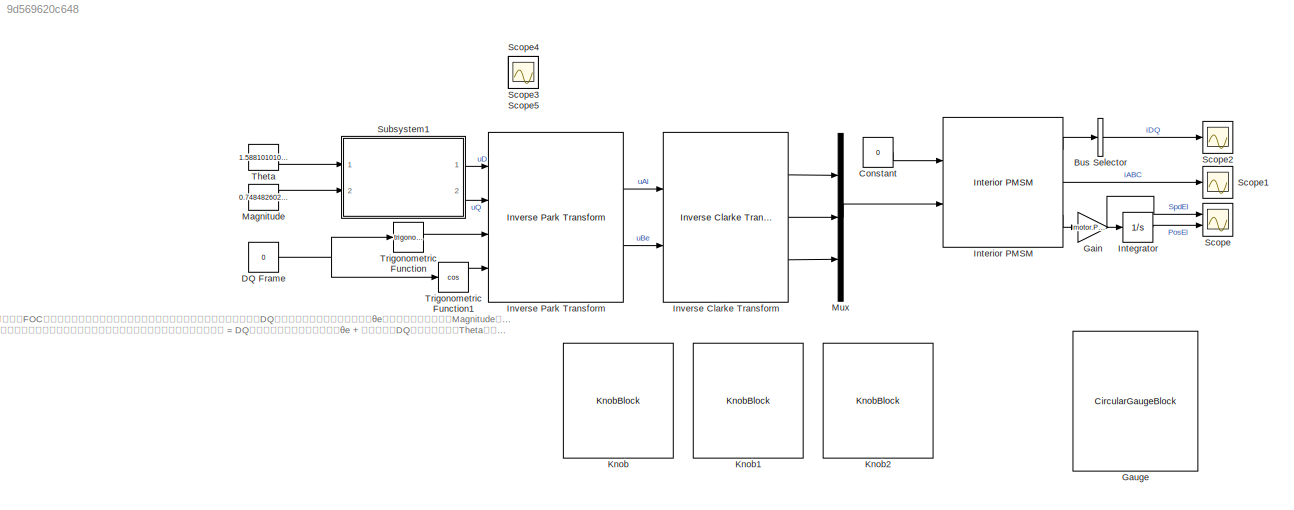
MODEL slx_9d569620c648
KIND model
CONFIG AbsTol = auto
CONFIG EnableMultiTasking = off
CONFIG FixedStep = Ts
CONFIG InitFcn = FOC_basic;
CONFIG MaxStep = 0.0005
CONFIG MinStep = auto
CONFIG RelTol = 1e-3
CONFIG SampleTimeConstraint = Unconstrained
CONFIG SolverName = FixedStepAuto
CONFIG StartTime = 0.0
CONFIG StopTime = inf
BLOCK [BusSelector] Bus Selector
  OutputAsBus = on
  OutputSignals = IdSync,IqSync
  Ports = [1, 1]
BLOCK [Constant] Constant
  Value = 0
BLOCK [Constant] DQ Frame
  Value = 0
BLOCK [Gain] Gain
  Gain = motor.Prs
BLOCK [CircularGaugeBlock] Gauge
  ScaleMax = 3.14
  ScaleMin = -3.14
  TickInterval = 1.57
BLOCK [Integrator] Integrator
  Ports = [1, 1]
  WrapState = on
BLOCK [Reference] Interior PMSM  REF=autolibpmsminterior/Interior PMSM
  Ports = [2, 3]
  SourceBlock = autolibpmsminterior/Interior PMSM
  SourceProductBaseCode = PW,MT,UV,VE,VP
  SourceType = Interior PMSM
BLOCK [Reference] Inverse Clarke Transform  REF=mcbcontrolslib/Inverse Clarke Transform
  Ports = [2, 3]
  SourceBlock = mcbcontrolslib/Inverse Clarke Transform
  SourceProductBaseCode = MT
  SourceType = Inverse Clarke Transform
BLOCK [Reference] Inverse Park Transform  REF=mcbcontrolslib/Inverse Park Transform
  Ports = [4, 2]
  SourceBlock = mcbcontrolslib/Inverse Park Transform
  SourceProductBaseCode = MT
  SourceType = Inverse Park Transform
BLOCK [KnobBlock] Knob
  ScaleMax = 3.14
  ScaleMin = -3.14
  TickInterval = 1.57
BLOCK [KnobBlock] Knob1
  ScaleMax = 12
  ScaleMin = -12
BLOCK [KnobBlock] Knob2
  ScaleMax = 3.14
  ScaleMin = -3.14
  TickInterval = 1.57
BLOCK [Constant] Magnitude
  Value = 0.7484826020082345
BLOCK [Mux] Mux
  DisplayOption = bar
  Inputs = 3
  Ports = [3, 1]
BLOCK [Scope] Scope
  Floating = off
  NumInputPorts = 2
  Ports = [2]
  ScopeSpecificationString = Simulink.scopes.TimeScopeBlockCfg('CurrentConfiguration', extmgr.ConfigurationSet(extmgr.Configuration('Core','General UI',true),extmgr.Configuration('Core','Source UI',true),extmgr.Configuration('Sources','WiredSimulink',true),extmgr.Configuration('Visuals','Time Domain',true,'SerializedDisplays',{struct('MinYLimReal','-49.03254','MaxYLimReal','49.03255','YLabelReal','','MinYLimMag','0.00000','Ma...<+2041ch>
BLOCK [Scope] Scope1
  Floating = off
  NumInputPorts = 1
  Ports = [1]
  ScopeSpecificationString = Simulink.scopes.TimeScopeBlockCfg('CurrentConfiguration', extmgr.ConfigurationSet(extmgr.Configuration('Core','General UI',true),extmgr.Configuration('Core','Source UI',true),extmgr.Configuration('Sources','WiredSimulink',true,'DataLoggingVariableName','ScopeData1'),extmgr.Configuration('Visuals','Time Domain',true,'SerializedDisplays',{struct('MinYLimReal','-0.46338','MaxYLimReal','0.46557','YLab...<+1454ch>
BLOCK [Scope] Scope2
  Floating = off
  NumInputPorts = 1
  Ports = [1]
  ScopeSpecificationString = Simulink.scopes.TimeScopeBlockCfg('CurrentConfiguration', extmgr.ConfigurationSet(extmgr.Configuration('Core','General UI',true),extmgr.Configuration('Core','Source UI',true),extmgr.Configuration('Sources','WiredSimulink',true,'DataLoggingVariableName','ScopeData2'),extmgr.Configuration('Visuals','Time Domain',true,'SerializedDisplays',{struct('MinYLimReal','-14.72706','MaxYLimReal','13.4803','YLa...<+1428ch>
BLOCK [Scope] Scope3
  Floating = off
  IOType = viewer
  NumInputPorts = 1
  Ports = []
  ScopeSpecificationString = Simulink.scopes.TimeScopeBlockCfg('CurrentConfiguration', extmgr.ConfigurationSet(extmgr.Configuration('Core','General UI',true),extmgr.Configuration('Core','Source UI',true),extmgr.Configuration('Sources','WiredSimulink',true,'DataLoggingVariableName','ScopeData1'),extmgr.Configuration('Visuals','Time Domain',true,'SerializedDisplays',{struct('MinYLimReal','-0.9284','MaxYLimReal','0.92572','YLabe...<+1633ch>
BLOCK [Scope] Scope4
  Floating = off
  IOType = viewer
  NumInputPorts = 1
  Ports = []
  ScopeSpecificationString = Simulink.scopes.TimeScopeBlockCfg('CurrentConfiguration', extmgr.ConfigurationSet(extmgr.Configuration('Core','General UI',true),extmgr.Configuration('Core','Source UI',true),extmgr.Configuration('Sources','WiredSimulink',true,'DataLoggingVariableName','ScopeData2'),extmgr.Configuration('Visuals','Time Domain',true,'SerializedDisplays',{struct('MinYLimReal','-0.9284','MaxYLimReal','0.92572','YLabe...<+1378ch>
BLOCK [Scope] Scope5
  Floating = off
  IOType = viewer
  NumInputPorts = 1
  Ports = []
  ScopeSpecificationString = Simulink.scopes.TimeScopeBlockCfg('CurrentConfiguration', extmgr.ConfigurationSet(extmgr.Configuration('Core','General UI',true),extmgr.Configuration('Core','Source UI',true),extmgr.Configuration('Sources','WiredSimulink',true,'DataLoggingVariableName','ScopeData3'),extmgr.Configuration('Visuals','Time Domain',true,'SerializedDisplays',{struct('MinYLimReal','-0.92826','MaxYLimReal','0.92449','YLab...<+1468ch>
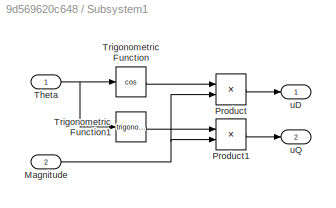
BLOCK [SubSystem] Subsystem1
  Ports = [2, 2]
  RequestExecContextInheritance = off
BLOCK [Inport] Subsystem1/Magnitude
  Port = 2
  SampleTime = Ts
BLOCK [Product] Subsystem1/Product
  Ports = [2, 1]
BLOCK [Product] Subsystem1/Product1
  Ports = [2, 1]
BLOCK [Inport] Subsystem1/Theta
  SampleTime = Ts
BLOCK [Trigonometry] Subsystem1/Trigonometric Function
  Operator = cos
  Ports = [1, 1]
BLOCK [Trigonometry] Subsystem1/Trigonometric Function1
  Ports = [1, 1]
BLOCK [Outport] Subsystem1/uD
BLOCK [Outport] Subsystem1/uQ
  Port = 2
BLOCK [Constant] Theta
  Value = 1.588101010628483
BLOCK [Trigonometry] Trigonometric Function
  Ports = [1, 1]
BLOCK [Trigonometry] Trigonometric Function1
  Operator = cos
  Ports = [1, 1]
ANNOTATION (root): 本模型用于展示FOC的 矢量特性 ：右侧有三个旋钮和一个表盘，通过三个旋钮可以分别控制DQ坐标系相对静止坐标系的角度（ θ e ）、电压矢量的幅值（Magnitude）和电压矢量在DQ坐标系中的角度（Theta）；而表盘可以显示转子实际的电角度。 通过仿真可以发现，稳定时，转子位置始终会与电压矢量重合（ 电压矢量的位置 = DQ坐标系相对静止坐标系的角度 θ e + 电压矢量在DQ坐标系中的角度Theta ）。所以通合适的控制算法控制电压矢量即可控制转子的位置，这便是FOC（Field Oriented Control）的本质。
LINE Bus Selector:1 -> Scope2:1
LINE Constant:1 -> Interior PMSM:1
NET DQ Frame:1 -> Trigonometric Function1:1, Trigonometric Function:1
NET Gain:1 -> Integrator:1, Scope:1
LINE Integrator:1 -> Scope:2
LINE Interior PMSM:1 -> Bus Selector:1
LINE Interior PMSM:2 -> Scope1:1
LINE Interior PMSM:3 -> Gain:1
LINE Inverse Clarke Transform:1 -> Mux:1
LINE Inverse Clarke Transform:2 -> Mux:2
LINE Inverse Clarke Transform:3 -> Mux:3
LINE Inverse Park Transform:1 -> Inverse Clarke Transform:1
LINE Inverse Park Transform:2 -> Inverse Clarke Transform:2
LINE Magnitude:1 -> Subsystem1:2
LINE Mux:1 -> Interior PMSM:2
NET Subsystem1/Magnitude:1 -> Subsystem1/Product1:2, Subsystem1/Product:2
LINE Subsystem1/Product1:1 -> Subsystem1/uQ:1
LINE Subsystem1/Product:1 -> Subsystem1/uD:1
NET Subsystem1/Theta:1 -> Subsystem1/Trigonometric Function1:1, Subsystem1/Trigonometric Function:1
LINE Subsystem1/Trigonometric Function1:1 -> Subsystem1/Product1:1
LINE Subsystem1/Trigonometric Function:1 -> Subsystem1/Product:1
LINE Subsystem1:1 -> Inverse Park Transform:1
LINE Subsystem1:2 -> Inverse Park Transform:2
LINE Theta:1 -> Subsystem1:1
LINE Trigonometric Function1:1 -> Inverse Park Transform:4
LINE Trigonometric Function:1 -> Inverse Park Transform:3
note: NET lines group one-source signal fan-out (src -> all destinations, sorted); 1:1 wires keep LINE
